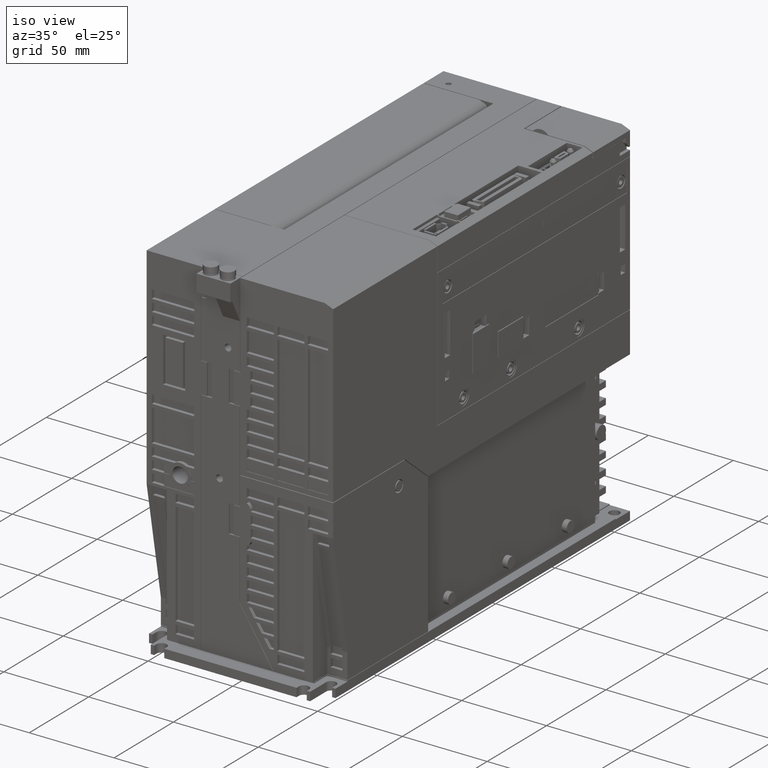
[diagram: clean part render]
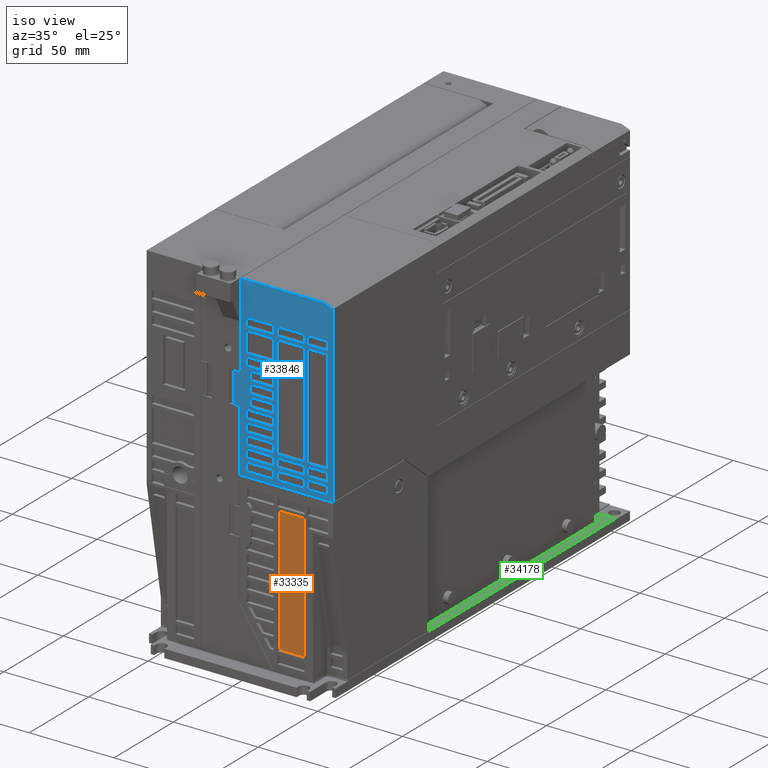
[diagram: same view with three faces highlighted in distinct colors, each labeled with its STEP entity id]
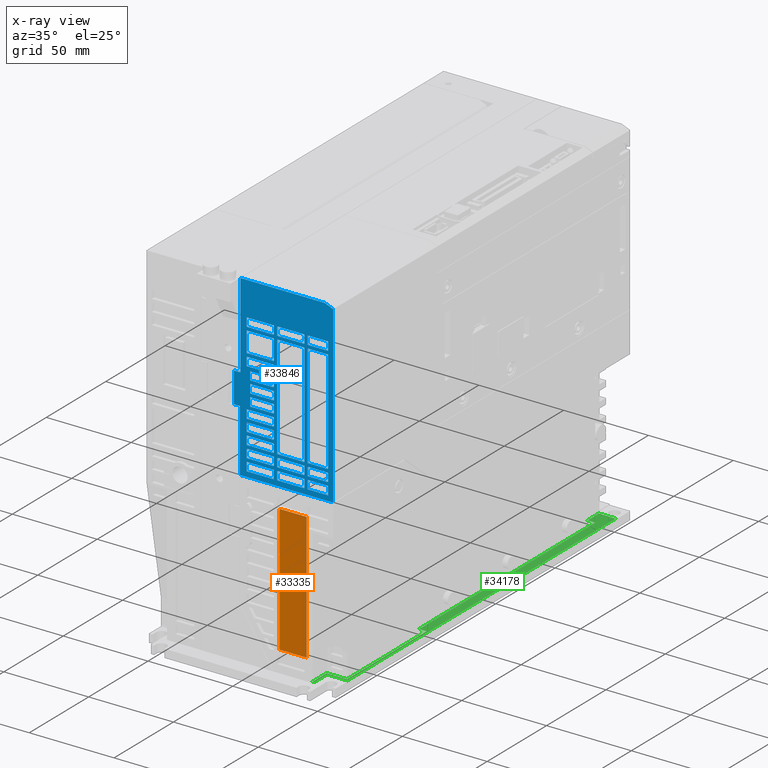
[diagram: x-ray of the same camera — body ghosted, the three highlighted faces saturated]
A machine part, iso view with three faces highlighted in distinct colors.
The next image is the same camera in x-ray (body ghosted, the three faces saturated) — at least one of them is partly hidden behind the body in this view.
Their STEP definitions:

[orange] entity #33335 — the highlighted planar face has unit normal (-0, 1, 0).
#2659=ORIENTED_EDGE('',*,*,#11726,.T.);
#2660=ORIENTED_EDGE('',*,*,#11727,.T.);
#2661=ORIENTED_EDGE('',*,*,#11728,.T.);
#2662=ORIENTED_EDGE('',*,*,#11729,.T.);
#11726=EDGE_CURVE('',#16266,#16267,#19481,.T.);
#11727=EDGE_CURVE('',#16267,#16268,#19482,.T.);
#11728=EDGE_CURVE('',#16268,#16269,#19483,.T.);
#11729=EDGE_CURVE('',#16269,#16266,#19484,.T.);
#16266=VERTEX_POINT('',#49639);
#16267=VERTEX_POINT('',#49640);
#16268=VERTEX_POINT('',#49642);
#16269=VERTEX_POINT('',#49644);
#19481=LINE('',#49638,#23716);
#19482=LINE('',#49641,#23717);
#19483=LINE('',#49643,#23718);
#19484=LINE('',#49645,#23719);
#23716=VECTOR('',#39767,1000.);
#23717=VECTOR('',#39768,1000.);
#23718=VECTOR('',#39769,1000.);
#23719=VECTOR('',#39770,1000.);
#27032=EDGE_LOOP('',(#2659,#2660,#2661,#2662));
#29375=FACE_BOUND('',#27032,.T.);
#31607=PLANE('',#35457);
#33335=ADVANCED_FACE('',(#29375),#31607,.F.);
#35457=AXIS2_PLACEMENT_3D('',#49637,#39765,#39766);
#39765=DIRECTION('',(-2.6727647100922E-45,1.,1.92592994438724E-30));
#39766=DIRECTION('',(1.,0.,1.38777878078145E-15));
#39767=DIRECTION('',(0.,-1.92592994438724E-30,1.));
#39768=DIRECTION('',(-1.,-2.6727647100922E-45,-6.52530446799853E-46));
#39769=DIRECTION('',(-6.93889390390722E-16,1.92592994438724E-30,-1.));
#39770=DIRECTION('',(1.,2.6727647100922E-45,0.));
#49637=CARTESIAN_POINT('',(-70.,-242.,200.));
#49638=CARTESIAN_POINT('',(-12.,-242.,200.));
#49639=CARTESIAN_POINT('',(-12.0000000000064,-242.000000000007,17.0000000000067));
#49640=CARTESIAN_POINT('',(-12.0000000000067,-242.000000000007,92.0000000000067));
#49641=CARTESIAN_POINT('',(-70.,-242.,92.));
#49642=CARTESIAN_POINT('',(-28.0000000000067,-242.000000000007,92.0000000000067));
#49643=CARTESIAN_POINT('',(-28.,-242.,200.));
#49644=CARTESIAN_POINT('',(-28.0000000000064,-242.000000000007,17.0000000000067));
#49645=CARTESIAN_POINT('',(-70.,-242.,17.));

[blue] entity #33846 — the highlighted planar face has unit normal (0, 1, 0).
#5408=ORIENTED_EDGE('',*,*,#13620,.F.);
#5409=ORIENTED_EDGE('',*,*,#11719,.F.);
#5410=ORIENTED_EDGE('',*,*,#11199,.F.);
#5411=ORIENTED_EDGE('',*,*,#13621,.F.);
#5412=ORIENTED_EDGE('',*,*,#13622,.F.);
#5413=ORIENTED_EDGE('',*,*,#13623,.F.);
#5414=ORIENTED_EDGE('',*,*,#13624,.F.);
#5415=ORIENTED_EDGE('',*,*,#13625,.F.);
#5416=ORIENTED_EDGE('',*,*,#13626,.F.);
#5417=ORIENTED_EDGE('',*,*,#13627,.F.);
#5418=ORIENTED_EDGE('',*,*,#13550,.F.);
#5419=ORIENTED_EDGE('',*,*,#13628,.F.);
#5420=ORIENTED_EDGE('',*,*,#13629,.F.);
#5421=ORIENTED_EDGE('',*,*,#13630,.F.);
#5422=ORIENTED_EDGE('',*,*,#13631,.F.);
#5423=ORIENTED_EDGE('',*,*,#11652,.F.);
#5424=ORIENTED_EDGE('',*,*,#11693,.F.);
#5425=ORIENTED_EDGE('',*,*,#13632,.F.);
#5426=ORIENTED_EDGE('',*,*,#13633,.F.);
#5427=ORIENTED_EDGE('',*,*,#13634,.F.);
#5428=ORIENTED_EDGE('',*,*,#13635,.F.);
#5429=ORIENTED_EDGE('',*,*,#13636,.F.);
#5430=ORIENTED_EDGE('',*,*,#13616,.F.);
#5431=ORIENTED_EDGE('',*,*,#13637,.F.);
#5432=ORIENTED_EDGE('',*,*,#11658,.F.);
#5433=ORIENTED_EDGE('',*,*,#13638,.F.);
#5434=ORIENTED_EDGE('',*,*,#13639,.F.);
#5435=ORIENTED_EDGE('',*,*,#12588,.F.);
#5436=ORIENTED_EDGE('',*,*,#13640,.F.);
#5437=ORIENTED_EDGE('',*,*,#12443,.F.);
#5438=ORIENTED_EDGE('',*,*,#13641,.F.);
#5439=ORIENTED_EDGE('',*,*,#13642,.F.);
#5440=ORIENTED_EDGE('',*,*,#13643,.F.);
#5441=ORIENTED_EDGE('',*,*,#12726,.F.);
#5442=ORIENTED_EDGE('',*,*,#13644,.F.);
#5443=ORIENTED_EDGE('',*,*,#13213,.F.);
#5444=ORIENTED_EDGE('',*,*,#13645,.F.);
#5445=ORIENTED_EDGE('',*,*,#13646,.F.);
#5446=ORIENTED_EDGE('',*,*,#10768,.F.);
#5447=ORIENTED_EDGE('',*,*,#13647,.F.);
#5448=ORIENTED_EDGE('',*,*,#13648,.F.);
#5449=ORIENTED_EDGE('',*,*,#13649,.F.);
#5450=ORIENTED_EDGE('',*,*,#13650,.F.);
#5451=ORIENTED_EDGE('',*,*,#13249,.F.);
#5452=ORIENTED_EDGE('',*,*,#11689,.F.);
#5453=ORIENTED_EDGE('',*,*,#12494,.F.);
#5454=ORIENTED_EDGE('',*,*,#11028,.F.);
#5455=ORIENTED_EDGE('',*,*,#13493,.F.);
#5456=ORIENTED_EDGE('',*,*,#13651,.F.);
#5457=ORIENTED_EDGE('',*,*,#13144,.F.);
#5458=ORIENTED_EDGE('',*,*,#13652,.F.);
#5459=ORIENTED_EDGE('',*,*,#11998,.F.);
#5460=ORIENTED_EDGE('',*,*,#13653,.F.);
#5461=ORIENTED_EDGE('',*,*,#13654,.F.);
#5462=ORIENTED_EDGE('',*,*,#12427,.F.);
#5463=ORIENTED_EDGE('',*,*,#13655,.F.);
#5464=ORIENTED_EDGE('',*,*,#13656,.F.);
#5465=ORIENTED_EDGE('',*,*,#13657,.F.);
#5466=ORIENTED_EDGE('',*,*,#13658,.F.);
#5467=ORIENTED_EDGE('',*,*,#13509,.F.);
#5468=ORIENTED_EDGE('',*,*,#13574,.F.);
#5469=ORIENTED_EDGE('',*,*,#13272,.F.);
#5470=ORIENTED_EDGE('',*,*,#13659,.F.);
#5471=ORIENTED_EDGE('',*,*,#13660,.F.);
#5472=ORIENTED_EDGE('',*,*,#13661,.F.);
#5473=ORIENTED_EDGE('',*,*,#11331,.F.);
#5474=ORIENTED_EDGE('',*,*,#13396,.F.);
#5475=ORIENTED_EDGE('',*,*,#13662,.F.);
#5476=ORIENTED_EDGE('',*,*,#13663,.F.);
#5477=ORIENTED_EDGE('',*,*,#11164,.F.);
#5478=ORIENTED_EDGE('',*,*,#11997,.F.);
#5479=ORIENTED_EDGE('',*,*,#11057,.F.);
#5480=ORIENTED_EDGE('',*,*,#10960,.F.);
#5481=ORIENTED_EDGE('',*,*,#12339,.F.);
#5482=ORIENTED_EDGE('',*,*,#13664,.F.);
#5483=ORIENTED_EDGE('',*,*,#13665,.F.);
#5484=ORIENTED_EDGE('',*,*,#13666,.F.);
#5485=ORIENTED_EDGE('',*,*,#12994,.T.);
#5486=ORIENTED_EDGE('',*,*,#13667,.F.);
#5487=ORIENTED_EDGE('',*,*,#13668,.F.);
#5488=ORIENTED_EDGE('',*,*,#13669,.F.);
#5489=ORIENTED_EDGE('',*,*,#13670,.F.);
#5490=ORIENTED_EDGE('',*,*,#11333,.F.);
#5491=ORIENTED_EDGE('',*,*,#12362,.F.);
#5492=ORIENTED_EDGE('',*,*,#12678,.T.);
#10768=EDGE_CURVE('',#15392,#15393,#18643,.T.);
#10960=EDGE_CURVE('',#15575,#15576,#18815,.T.);
#11028=EDGE_CURVE('',#15640,#15641,#18876,.T.);
#11057=EDGE_CURVE('',#15668,#15669,#18901,.T.);
#11164=EDGE_CURVE('',#15767,#15768,#19004,.T.);
#11199=EDGE_CURVE('',#15799,#15800,#19031,.T.);
#11331=EDGE_CURVE('',#15916,#15917,#19142,.T.);
#11333=EDGE_CURVE('',#15918,#15919,#19144,.T.);
#11652=EDGE_CURVE('',#16201,#16202,#19412,.T.);
#11658=EDGE_CURVE('',#16205,#16206,#19418,.T.);
#11689=EDGE_CURVE('',#16234,#16235,#19444,.T.);
#11693=EDGE_CURVE('',#16238,#16239,#19448,.T.);
#11719=EDGE_CURVE('',#15800,#16262,#19474,.T.);
#11997=EDGE_CURVE('',#15669,#15767,#19698,.T.);
#11998=EDGE_CURVE('',#16495,#16496,#19699,.T.);
#12339=EDGE_CURVE('',#16766,#15575,#20014,.T.);
#12362=EDGE_CURVE('',#16782,#15918,#20033,.T.);
#12427=EDGE_CURVE('',#16830,#16831,#20095,.T.);
#12443=EDGE_CURVE('',#16841,#16842,#20111,.T.);
#12494=EDGE_CURVE('',#15641,#16234,#20150,.T.);
#12588=EDGE_CURVE('',#16206,#16943,#20235,.T.);
#12678=EDGE_CURVE('',#16782,#17008,#20318,.T.);
#12726=EDGE_CURVE('',#17036,#17037,#20362,.T.);
#12994=EDGE_CURVE('',#17212,#17213,#20606,.T.);
#13144=EDGE_CURVE('',#17311,#17312,#20746,.T.);
#13213=EDGE_CURVE('',#17354,#17355,#20804,.T.);
#13249=EDGE_CURVE('',#17380,#17381,#20837,.T.);
#13272=EDGE_CURVE('',#17396,#17397,#20860,.T.);
#13396=EDGE_CURVE('',#17470,#15916,#20977,.T.);
#13493=EDGE_CURVE('',#16235,#15640,#21069,.T.);
#13509=EDGE_CURVE('',#17535,#17536,#21084,.T.);
#13550=EDGE_CURVE('',#17561,#17562,#21123,.T.);
#13574=EDGE_CURVE('',#17397,#17577,#21146,.T.);
#13616=EDGE_CURVE('',#17594,#17595,#21186,.T.);
#13620=EDGE_CURVE('',#16262,#17598,#21190,.T.);
#13621=EDGE_CURVE('',#17598,#15799,#21191,.T.);
#13622=EDGE_CURVE('',#17599,#17600,#21192,.T.);
#13623=EDGE_CURVE('',#17601,#17599,#21193,.T.);
#13624=EDGE_CURVE('',#17602,#17601,#21194,.T.);
#13625=EDGE_CURVE('',#17600,#17602,#21195,.T.);
#13626=EDGE_CURVE('',#17603,#17604,#21196,.T.);
#13627=EDGE_CURVE('',#17562,#17603,#21197,.T.);
#13628=EDGE_CURVE('',#17604,#17561,#21198,.T.);
#13629=EDGE_CURVE('',#17605,#16201,#21199,.T.);
#13630=EDGE_CURVE('',#17606,#17605,#21200,.T.);
#13631=EDGE_CURVE('',#16202,#17606,#21201,.T.);
#13632=EDGE_CURVE('',#17607,#16238,#21202,.T.);
#13633=EDGE_CURVE('',#17608,#17607,#21203,.T.);
#13634=EDGE_CURVE('',#16239,#17608,#21204,.T.);
#13635=EDGE_CURVE('',#17609,#17610,#21205,.T.);
#13636=EDGE_CURVE('',#17595,#17609,#21206,.T.);
#13637=EDGE_CURVE('',#17610,#17594,#21207,.T.);
#13638=EDGE_CURVE('',#17611,#16205,#21208,.T.);
#13639=EDGE_CURVE('',#16943,#17611,#21209,.T.);
#13640=EDGE_CURVE('',#16842,#17612,#21210,.T.);
#13641=EDGE_CURVE('',#17613,#16841,#21211,.T.);
#13642=EDGE_CURVE('',#17612,#17613,#21212,.T.);
#13643=EDGE_CURVE('',#17037,#17354,#21213,.T.);
#13644=EDGE_CURVE('',#17355,#17036,#21214,.T.);
#13645=EDGE_CURVE('',#17614,#17615,#21215,.T.);
#13646=EDGE_CURVE('',#15393,#17614,#21216,.T.);
#13647=EDGE_CURVE('',#17615,#15392,#21217,.T.);
#13648=EDGE_CURVE('',#17616,#17380,#21218,.T.);
#13649=EDGE_CURVE('',#17617,#17616,#21219,.T.);
#13650=EDGE_CURVE('',#17381,#17617,#21220,.T.);
#13651=EDGE_CURVE('',#17312,#16495,#21221,.T.);
#13652=EDGE_CURVE('',#16496,#17311,#21222,.T.);
#13653=EDGE_CURVE('',#17618,#17619,#21223,.T.);
#13654=EDGE_CURVE('',#16831,#17618,#21224,.T.);
#13655=EDGE_CURVE('',#17619,#16830,#21225,.T.);
#13656=EDGE_CURVE('',#17620,#17535,#21226,.T.);
#13657=EDGE_CURVE('',#17621,#17620,#21227,.T.);
#13658=EDGE_CURVE('',#17536,#17621,#21228,.T.);
#13659=EDGE_CURVE('',#17622,#17396,#21229,.T.);
#13660=EDGE_CURVE('',#17577,#17622,#21230,.T.);
#13661=EDGE_CURVE('',#15917,#17623,#21231,.T.);
#13662=EDGE_CURVE('',#17623,#17470,#21232,.T.);
#13663=EDGE_CURVE('',#15768,#15668,#21233,.T.);
#13664=EDGE_CURVE('',#17624,#16766,#21234,.T.);
#13665=EDGE_CURVE('',#15576,#17624,#21235,.T.);
#13666=EDGE_CURVE('',#17212,#17008,#21236,.T.);
#13667=EDGE_CURVE('',#17625,#17213,#21237,.T.);
#13668=EDGE_CURVE('',#17626,#17625,#21238,.T.);
#13669=EDGE_CURVE('',#17627,#17626,#21239,.T.);
#13670=EDGE_CURVE('',#15919,#17627,#21240,.T.);
#15392=VERTEX_POINT('',#47598);
#15393=VERTEX_POINT('',#47599);
#15575=VERTEX_POINT('',#48010);
#15576=VERTEX_POINT('',#48012);
#15640=VERTEX_POINT('',#48162);
#15641=VERTEX_POINT('',#48163);
#15668=VERTEX_POINT('',#48225);
#15669=VERTEX_POINT('',#48227);
#15767=VERTEX_POINT('',#48453);
#15768=VERTEX_POINT('',#48455);
#15799=VERTEX_POINT('',#48531);
#15800=VERTEX_POINT('',#48532);
#15916=VERTEX_POINT('',#48806);
#15917=VERTEX_POINT('',#48808);
#15918=VERTEX_POINT('',#48812);
#15919=VERTEX_POINT('',#48813);
#16201=VERTEX_POINT('',#49478);
#16202=VERTEX_POINT('',#49479);
#16205=VERTEX_POINT('',#49490);
#16206=VERTEX_POINT('',#49491);
#16234=VERTEX_POINT('',#49559);
#16235=VERTEX_POINT('',#49560);
#16238=VERTEX_POINT('',#49568);
#16239=VERTEX_POINT('',#49569);
#16262=VERTEX_POINT('',#49625);
#16495=VERTEX_POINT('',#50169);
#16496=VERTEX_POINT('',#50170);
#16766=VERTEX_POINT('',#50876);
#16782=VERTEX_POINT('',#50924);
#16830=VERTEX_POINT('',#51052);
#16831=VERTEX_POINT('',#51053);
#16841=VERTEX_POINT('',#51084);
#16842=VERTEX_POINT('',#51085);
#16943=VERTEX_POINT('',#51369);
#17008=VERTEX_POINT('',#51550);
#17036=VERTEX_POINT('',#51646);
#17037=VERTEX_POINT('',#51647);
#17212=VERTEX_POINT('',#52162);
#17213=VERTEX_POINT('',#52163);
#17311=VERTEX_POINT('',#52455);
#17312=VERTEX_POINT('',#52456);
#17354=VERTEX_POINT('',#52587);
#17355=VERTEX_POINT('',#52588);
#17380=VERTEX_POINT('',#52661);
#17381=VERTEX_POINT('',#52662);
#17396=VERTEX_POINT('',#52706);
#17397=VERTEX_POINT('',#52707);
#17470=VERTEX_POINT('',#52931);
#17535=VERTEX_POINT('',#53155);
#17536=VERTEX_POINT('',#53156);
#17561=VERTEX_POINT('',#53239);
#17562=VERTEX_POINT('',#53240);
#17577=VERTEX_POINT('',#53287);
#17594=VERTEX_POINT('',#53367);
#17595=VERTEX_POINT('',#53368);
#17598=VERTEX_POINT('',#53376);
#17599=VERTEX_POINT('',#53379);
#17600=VERTEX_POINT('',#53380);
#17601=VERTEX_POINT('',#53382);
#17602=VERTEX_POINT('',#53384);
#17603=VERTEX_POINT('',#53387);
#17604=VERTEX_POINT('',#53388);
#17605=VERTEX_POINT('',#53392);
#17606=VERTEX_POINT('',#53394);
#17607=VERTEX_POINT('',#53397);
#17608=VERTEX_POINT('',#53399);
#17609=VERTEX_POINT('',#53402);
#17610=VERTEX_POINT('',#53403);
#17611=VERTEX_POINT('',#53407);
#17612=VERTEX_POINT('',#53410);
#17613=VERTEX_POINT('',#53412);
#17614=VERTEX_POINT('',#53417);
#17615=VERTEX_POINT('',#53418);
#17616=VERTEX_POINT('',#53422);
#17617=VERTEX_POINT('',#53424);
#17618=VERTEX_POINT('',#53429);
#17619=VERTEX_POINT('',#53430);
#17620=VERTEX_POINT('',#53434);
#17621=VERTEX_POINT('',#53436);
#17622=VERTEX_POINT('',#53439);
#17623=VERTEX_POINT('',#53442);
#17624=VERTEX_POINT('',#53446);
#17625=VERTEX_POINT('',#53450);
#17626=VERTEX_POINT('',#53452);
#17627=VERTEX_POINT('',#53454);
#18643=LINE('',#47597,#22878);
#18815=LINE('',#48011,#23050);
#18876=LINE('',#48161,#23111);
#18901=LINE('',#48226,#23136);
#19004=LINE('',#48454,#23239);
#19031=LINE('',#48530,#23266);
#19142=LINE('',#48807,#23377);
#19144=LINE('',#48811,#23379);
#19412=LINE('',#49477,#23647);
#19418=LINE('',#49489,#23653);
#19444=LINE('',#49558,#23679);
#19448=LINE('',#49567,#23683);
#19474=LINE('',#49624,#23709);
#19698=LINE('',#50166,#23933);
#19699=LINE('',#50168,#23934);
#20014=LINE('',#50877,#24249);
#20033=LINE('',#50925,#24268);
#20095=LINE('',#51051,#24330);
#20111=LINE('',#51083,#24346);
#20150=LINE('',#51186,#24385);
#20235=LINE('',#51368,#24470);
#20318=LINE('',#51549,#24553);
#20362=LINE('',#51645,#24597);
#20606=LINE('',#52161,#24841);
#20746=LINE('',#52454,#24981);
#20804=LINE('',#52586,#25039);
#20837=LINE('',#52660,#25072);
#20860=LINE('',#52705,#25095);
#20977=LINE('',#52932,#25212);
#21069=LINE('',#53123,#25304);
#21084=LINE('',#53154,#25319);
#21123=LINE('',#53238,#25358);
#21146=LINE('',#53286,#25381);
#21186=LINE('',#53366,#25421);
#21190=LINE('',#53375,#25425);
#21191=LINE('',#53377,#25426);
#21192=LINE('',#53378,#25427);
#21193=LINE('',#53381,#25428);
#21194=LINE('',#53383,#25429);
#21195=LINE('',#53385,#25430);
#21196=LINE('',#53386,#25431);
#21197=LINE('',#53389,#25432);
#21198=LINE('',#53390,#25433);
#21199=LINE('',#53391,#25434);
#21200=LINE('',#53393,#25435);
#21201=LINE('',#53395,#25436);
#21202=LINE('',#53396,#25437);
#21203=LINE('',#53398,#25438);
#21204=LINE('',#53400,#25439);
#21205=LINE('',#53401,#25440);
#21206=LINE('',#53404,#25441);
#21207=LINE('',#53405,#25442);
#21208=LINE('',#53406,#25443);
#21209=LINE('',#53408,#25444);
#21210=LINE('',#53409,#25445);
#21211=LINE('',#53411,#25446);
#21212=LINE('',#53413,#25447);
#21213=LINE('',#53414,#25448);
#21214=LINE('',#53415,#25449);
#21215=LINE('',#53416,#25450);
#21216=LINE('',#53419,#25451);
#21217=LINE('',#53420,#25452);
#21218=LINE('',#53421,#25453);
#21219=LINE('',#53423,#25454);
#21220=LINE('',#53425,#25455);
#21221=LINE('',#53426,#25456);
#21222=LINE('',#53427,#25457);
#21223=LINE('',#53428,#25458);
#21224=LINE('',#53431,#25459);
#21225=LINE('',#53432,#25460);
#21226=LINE('',#53433,#25461);
#21227=LINE('',#53435,#25462);
#21228=LINE('',#53437,#25463);
#21229=LINE('',#53438,#25464);
#21230=LINE('',#53440,#25465);
#21231=LINE('',#53441,#25466);
#21232=LINE('',#53443,#25467);
#21233=LINE('',#53444,#25468);
#21234=LINE('',#53445,#25469);
#21235=LINE('',#53447,#25470);
#21236=LINE('',#53448,#25471);
#21237=LINE('',#53449,#25472);
#21238=LINE('',#53451,#25473);
#21239=LINE('',#53453,#25474);
#21240=LINE('',#53455,#25475);
#22878=VECTOR('',#38271,1000.);
#23050=VECTOR('',#38559,1000.);
#23111=VECTOR('',#38670,1000.);
#23136=VECTOR('',#38717,1000.);
#23239=VECTOR('',#38872,1000.);
#23266=VECTOR('',#38935,1000.);
#23377=VECTOR('',#39142,1000.);
#23379=VECTOR('',#39146,1000.);
#23647=VECTOR('',#39644,1000.);
#23653=VECTOR('',#39654,1000.);
#23679=VECTOR('',#39708,1000.);
#23683=VECTOR('',#39714,1000.);
#23709=VECTOR('',#39754,1000.);
#23933=VECTOR('',#40148,1000.);
#23934=VECTOR('',#40151,1000.);
#24249=VECTOR('',#40710,1000.);
#24268=VECTOR('',#40755,1000.);
#24330=VECTOR('',#40851,1000.);
#24346=VECTOR('',#40877,1000.);
#24385=VECTOR('',#40970,1000.);
#24470=VECTOR('',#41119,1000.);
#24553=VECTOR('',#41268,1000.);
#24597=VECTOR('',#41360,1000.);
#24841=VECTOR('',#41796,1000.);
#24981=VECTOR('',#42044,1000.);
#25039=VECTOR('',#42164,1000.);
#25072=VECTOR('',#42227,1000.);
#25095=VECTOR('',#42262,1000.);
#25212=VECTOR('',#42449,1000.);
#25304=VECTOR('',#42625,1000.);
#25319=VECTOR('',#42658,1000.);
#25358=VECTOR('',#42735,1000.);
#25381=VECTOR('',#42776,1000.);
#25421=VECTOR('',#42862,1000.);
#25425=VECTOR('',#42868,1000.);
#25426=VECTOR('',#42869,1000.);
#25427=VECTOR('',#42870,1000.);
#25428=VECTOR('',#42871,1000.);
#25429=VECTOR('',#42872,1000.);
#25430=VECTOR('',#42873,1000.);
#25431=VECTOR('',#42874,1000.);
#25432=VECTOR('',#42875,1000.);
#25433=VECTOR('',#42876,1000.);
#25434=VECTOR('',#42877,1000.);
#25435=VECTOR('',#42878,1000.);
#25436=VECTOR('',#42879,1000.);
#25437=VECTOR('',#42880,1000.);
#25438=VECTOR('',#42881,1000.);
#25439=VECTOR('',#42882,1000.);
#25440=VECTOR('',#42883,1000.);
#25441=VECTOR('',#42884,1000.);
#25442=VECTOR('',#42885,1000.);
#25443=VECTOR('',#42886,1000.);
#25444=VECTOR('',#42887,1000.);
#25445=VECTOR('',#42888,1000.);
#25446=VECTOR('',#42889,1000.);
#25447=VECTOR('',#42890,1000.);
#25448=VECTOR('',#42891,1000.);
#25449=VECTOR('',#42892,1000.);
#25450=VECTOR('',#42893,1000.);
#25451=VECTOR('',#42894,1000.);
#25452=VECTOR('',#42895,1000.);
#25453=VECTOR('',#42896,1000.);
#25454=VECTOR('',#42897,1000.);
#25455=VECTOR('',#42898,1000.);
#25456=VECTOR('',#42899,1000.);
#25457=VECTOR('',#42900,1000.);
#25458=VECTOR('',#42901,1000.);
#25459=VECTOR('',#42902,1000.);
#25460=VECTOR('',#42903,1000.);
#25461=VECTOR('',#42904,1000.);
#25462=VECTOR('',#42905,1000.);
#25463=VECTOR('',#42906,1000.);
#25464=VECTOR('',#42907,1000.);
#25465=VECTOR('',#42908,1000.);
#25466=VECTOR('',#42909,1000.);
#25467=VECTOR('',#42910,1000.);
#25468=VECTOR('',#42911,1000.);
#25469=VECTOR('',#42912,1000.);
#25470=VECTOR('',#42913,1000.);
#25471=VECTOR('',#42914,1000.);
#25472=VECTOR('',#42915,1000.);
#25473=VECTOR('',#42916,1000.);
#25474=VECTOR('',#42917,1000.);
#25475=VECTOR('',#42918,1000.);
#27696=EDGE_LOOP('',(#5408,#5409,#5410,#5411));
#27697=EDGE_LOOP('',(#5412,#5413,#5414,#5415));
#27698=EDGE_LOOP('',(#5416,#5417,#5418,#5419));
#27699=EDGE_LOOP('',(#5420,#5421,#5422,#5423));
#27700=EDGE_LOOP('',(#5424,#5425,#5426,#5427));
#27701=EDGE_LOOP('',(#5428,#5429,#5430,#5431));
#27702=EDGE_LOOP('',(#5432,#5433,#5434,#5435));
#27703=EDGE_LOOP('',(#5436,#5437,#5438,#5439));
#27704=EDGE_LOOP('',(#5440,#5441,#5442,#5443));
#27705=EDGE_LOOP('',(#5444,#5445,#5446,#5447));
#27706=EDGE_LOOP('',(#5448,#5449,#5450,#5451));
#27707=EDGE_LOOP('',(#5452,#5453,#5454,#5455));
#27708=EDGE_LOOP('',(#5456,#5457,#5458,#5459));
#27709=EDGE_LOOP('',(#5460,#5461,#5462,#5463));
#27710=EDGE_LOOP('',(#5464,#5465,#5466,#5467));
#27711=EDGE_LOOP('',(#5468,#5469,#5470,#5471));
#27712=EDGE_LOOP('',(#5472,#5473,#5474,#5475));
#27713=EDGE_LOOP('',(#5476,#5477,#5478,#5479));
#27714=EDGE_LOOP('',(#5480,#5481,#5482,#5483));
#27715=EDGE_LOOP('',(#5484,#5485,#5486,#5487,#5488,#5489,#5490,#5491,#5492));
#30039=FACE_BOUND('',#27696,.T.);
#30040=FACE_BOUND('',#27697,.T.);
#30041=FACE_BOUND('',#27698,.T.);
#30042=FACE_BOUND('',#27699,.T.);
#30043=FACE_BOUND('',#27700,.T.);
#30044=FACE_BOUND('',#27701,.T.);
#30045=FACE_BOUND('',#27702,.T.);
#30046=FACE_BOUND('',#27703,.T.);
#30047=FACE_BOUND('',#27704,.T.);
#30048=FACE_BOUND('',#27705,.T.);
#30049=FACE_BOUND('',#27706,.T.);
#30050=FACE_BOUND('',#27707,.T.);
#30051=FACE_BOUND('',#27708,.T.);
#30052=FACE_BOUND('',#27709,.T.);
#30053=FACE_BOUND('',#27710,.T.);
#30054=FACE_BOUND('',#27711,.T.);
#30055=FACE_BOUND('',#27712,.T.);
#30056=FACE_BOUND('',#27713,.T.);
#30057=FACE_BOUND('',#27714,.T.);
#30058=FACE_BOUND('',#27715,.T.);
#32058=PLANE('',#36153);
#33846=ADVANCED_FACE('',(#30039,#30040,#30041,#30042,#30043,#30044,#30045,
#30046,#30047,#30048,#30049,#30050,#30051,#30052,#30053,#30054,#30055,#30056,
#30057,#30058),#32058,.F.);
#36153=AXIS2_PLACEMENT_3D('',#53374,#42866,#42867);
#38271=DIRECTION('',(1.,0.,0.));
#38559=DIRECTION('',(-1.,0.,0.));
#38670=DIRECTION('',(1.,0.,0.));
#38717=DIRECTION('',(-6.93889390390722E-16,0.,-1.));
#38872=DIRECTION('',(0.,0.,1.));
#38935=DIRECTION('',(0.,0.,-1.));
#39142=DIRECTION('',(0.,0.,1.));
#39146=DIRECTION('',(-1.,0.,0.));
#39644=DIRECTION('',(0.,0.,-1.));
#39654=DIRECTION('',(-1.,0.,0.));
#39708=DIRECTION('',(-1.,0.,0.));
#39714=DIRECTION('',(0.,0.,1.));
#39754=DIRECTION('',(1.,0.,0.));
#40148=DIRECTION('',(1.,0.,0.));
#40151=DIRECTION('',(0.,0.,-1.));
#40710=DIRECTION('',(0.,0.,1.));
#40755=DIRECTION('',(0.,0.,1.));
#40851=DIRECTION('',(0.,0.,-1.));
#40877=DIRECTION('',(0.,0.,1.));
#40970=DIRECTION('',(0.,0.,1.));
#41119=DIRECTION('',(0.,0.,-1.));
#41268=DIRECTION('',(1.,1.02220446049249E-14,0.));
#41360=DIRECTION('',(0.,0.,1.));
#41796=DIRECTION('',(-0.928476690885259,0.,0.371390676354105));
#42044=DIRECTION('',(0.,0.,1.));
#42164=DIRECTION('',(0.,0.,-1.));
#42227=DIRECTION('',(0.,0.,-1.));
#42262=DIRECTION('',(0.,0.,1.));
#42449=DIRECTION('',(1.,0.,0.));
#42625=DIRECTION('',(0.,0.,-1.));
#42658=DIRECTION('',(0.,0.,-1.));
#42735=DIRECTION('',(1.,0.,0.));
#42776=DIRECTION('',(-1.,0.,0.));
#42862=DIRECTION('',(1.,0.,0.));
#42866=DIRECTION('',(0.,1.,0.));
#42867=DIRECTION('',(1.,0.,0.));
#42868=DIRECTION('',(0.,0.,1.));
#42869=DIRECTION('',(-1.,0.,0.));
#42870=DIRECTION('',(-1.,0.,0.));
#42871=DIRECTION('',(0.,0.,1.));
#42872=DIRECTION('',(1.,0.,0.));
#42873=DIRECTION('',(0.,0.,-1.));
#42874=DIRECTION('',(-1.,0.,0.));
#42875=DIRECTION('',(0.,0.,1.));
#42876=DIRECTION('',(-1.06938893903906E-14,0.,-1.));
#42877=DIRECTION('',(-1.,0.,0.));
#42878=DIRECTION('',(0.,0.,1.));
#42879=DIRECTION('',(1.,0.,0.));
#42880=DIRECTION('',(1.,0.,0.));
#42881=DIRECTION('',(-6.93889390390722E-16,0.,-1.));
#42882=DIRECTION('',(-1.,0.,0.));
#42883=DIRECTION('',(-1.,0.,0.));
#42884=DIRECTION('',(0.,0.,1.));
#42885=DIRECTION('',(0.,0.,-1.));
#42886=DIRECTION('',(0.,0.,1.));
#42887=DIRECTION('',(1.,0.,0.));
#42888=DIRECTION('',(-1.,0.,0.));
#42889=DIRECTION('',(1.,0.,0.));
#42890=DIRECTION('',(0.,0.,-1.));
#42891=DIRECTION('',(-1.,0.,0.));
#42892=DIRECTION('',(1.,0.,0.));
#42893=DIRECTION('',(-1.,0.,0.));
#42894=DIRECTION('',(0.,0.,1.));
#42895=DIRECTION('',(0.,0.,-1.));
#42896=DIRECTION('',(-1.,0.,0.));
#42897=DIRECTION('',(0.,0.,1.));
#42898=DIRECTION('',(1.,0.,0.));
#42899=DIRECTION('',(-1.,0.,0.));
#42900=DIRECTION('',(1.,0.,0.));
#42901=DIRECTION('',(0.,0.,1.));
#42902=DIRECTION('',(1.,0.,0.));
#42903=DIRECTION('',(-1.,0.,0.));
#42904=DIRECTION('',(-1.,0.,0.));
#42905=DIRECTION('',(0.,0.,1.));
#42906=DIRECTION('',(1.,0.,0.));
#42907=DIRECTION('',(1.,0.,0.));
#42908=DIRECTION('',(-6.93889390390722E-16,0.,-1.));
#42909=DIRECTION('',(-1.,0.,0.));
#42910=DIRECTION('',(0.,0.,-1.));
#42911=DIRECTION('',(-1.,0.,0.));
#42912=DIRECTION('',(1.,0.,0.));
#42913=DIRECTION('',(0.,0.,-1.));
#42914=DIRECTION('',(0.,0.,-1.));
#42915=DIRECTION('',(1.,0.,0.));
#42916=DIRECTION('',(1.71309569952327E-15,0.,1.));
#42917=DIRECTION('',(1.,0.,0.));
#42918=DIRECTION('',(0.,0.,1.));
#47597=CARTESIAN_POINT('',(-30.00000000001,-244.00000000001,143.00000000001));
#47598=CARTESIAN_POINT('',(-44.,-244.,143.));
#47599=CARTESIAN_POINT('',(-30.0000000000067,-244.000000000007,143.000000000007));
#48010=CARTESIAN_POINT('',(-30.0000000000067,-244.000000000007,113.000000000007));
#48011=CARTESIAN_POINT('',(2.00000000000007,-244.,113.));
#48012=CARTESIAN_POINT('',(-46.0000000000067,-244.000000000007,113.000000000007));
#48161=CARTESIAN_POINT('',(-77.,-244.,129.));
#48162=CARTESIAN_POINT('',(-46.0000000000066,-244.000000000007,129.000000000007));
#48163=CARTESIAN_POINT('',(-30.0000000000067,-244.000000000007,129.000000000007));
#48225=CARTESIAN_POINT('',(-28.0000000000067,-244.000000000007,113.000000000007));
#48226=CARTESIAN_POINT('',(-28.,-244.,190.));
#48227=CARTESIAN_POINT('',(-28.0000000000067,-244.000000000007,108.000000000007));
#48453=CARTESIAN_POINT('',(-12.0000000000067,-244.000000000007,108.000000000007));
#48454=CARTESIAN_POINT('',(-12.,-244.,15.));
#48455=CARTESIAN_POINT('',(-12.0000000000067,-244.000000000007,113.000000000007));
#48530=CARTESIAN_POINT('',(-10.,-244.,92.));
#48531=CARTESIAN_POINT('',(-10.0000000000067,-244.000000000007,190.000000000007));
#48532=CARTESIAN_POINT('',(-10.0000000000067,-244.000000000007,185.000000000007));
#48806=CARTESIAN_POINT('',(2.00000000000672,-244.000000000007,108.000000000007));
#48807=CARTESIAN_POINT('',(2.00000000000004,-244.,141.2));
#48808=CARTESIAN_POINT('',(2.00000000000674,-244.000000000007,113.000000000007));
#48811=CARTESIAN_POINT('',(-53.50000000001,-244.00000000001,141.70000000001));
#48812=CARTESIAN_POINT('',(-50.0000000000067,-244.000000000007,141.700000000007));
#48813=CARTESIAN_POINT('',(-53.5,-244.,141.7));
#49477=CARTESIAN_POINT('',(-46.,-244.,113.));
#49478=CARTESIAN_POINT('',(-46.0000000000067,-244.000000000007,190.000000000007));
#49479=CARTESIAN_POINT('',(-46.0000000000067,-244.000000000007,185.000000000007));
#49489=CARTESIAN_POINT('',(-30.00000000001,-244.00000000001,169.00000000001));
#49490=CARTESIAN_POINT('',(-30.0000000000067,-244.000000000007,169.000000000007));
#49491=CARTESIAN_POINT('',(-46.0000000000067,-244.000000000007,169.000000000007));
#49558=CARTESIAN_POINT('',(-77.,-244.,134.));
#49559=CARTESIAN_POINT('',(-30.0000000000067,-244.000000000007,134.000000000007));
#49560=CARTESIAN_POINT('',(-46.0000000000067,-244.000000000007,134.000000000007));
#49567=CARTESIAN_POINT('',(-12.,-244.,15.));
#49568=CARTESIAN_POINT('',(-12.0000000000065,-244.000000000007,122.000000000007));
#49569=CARTESIAN_POINT('',(-12.0000000000067,-244.000000000007,183.000000000007));
#49624=CARTESIAN_POINT('',(-77.,-244.,185.));
#49625=CARTESIAN_POINT('',(2.00000000000674,-244.000000000007,185.000000000007));
#50166=CARTESIAN_POINT('',(-30.,-244.,108.));
#50168=CARTESIAN_POINT('',(-46.,-244.,113.));
#50169=CARTESIAN_POINT('',(-46.0000000000067,-244.000000000007,127.000000000007));
#50170=CARTESIAN_POINT('',(-46.0000000000067,-244.000000000007,122.000000000007));
#50876=CARTESIAN_POINT('',(-30.0000000000067,-244.000000000007,108.000000000007));
#50877=CARTESIAN_POINT('',(-30.,-244.,183.));
#50924=CARTESIAN_POINT('',(-50.0000000000067,-244.000000000007,105.000000000007));
#50925=CARTESIAN_POINT('',(-50.,-244.,167.2));
#51051=CARTESIAN_POINT('',(-46.,-244.,113.));
#51052=CARTESIAN_POINT('',(-46.0000000000067,-244.000000000007,120.000000000007));
#51053=CARTESIAN_POINT('',(-46.0000000000067,-244.000000000007,115.000000000007));
#51083=CARTESIAN_POINT('',(-30.,-244.,183.));
#51084=CARTESIAN_POINT('',(-30.0000000000067,-244.000000000007,157.000000000007));
#51085=CARTESIAN_POINT('',(-30.0000000000067,-244.000000000007,162.000000000007));
#51186=CARTESIAN_POINT('',(-30.,-244.,183.));
#51368=CARTESIAN_POINT('',(-46.,-244.,113.));
#51369=CARTESIAN_POINT('',(-46.0000000000066,-244.000000000007,164.000000000007));
#51549=CARTESIAN_POINT('',(4.00000000001006,-244.00000000001,105.00000000001));
#51550=CARTESIAN_POINT('',(5.00000000000691,-244.000000000007,105.000000000007));
#51645=CARTESIAN_POINT('',(-30.,-244.,183.));
#51646=CARTESIAN_POINT('',(-30.0000000000067,-244.000000000007,150.000000000007));
#51647=CARTESIAN_POINT('',(-30.0000000000067,-244.000000000007,155.000000000007));
#52161=CARTESIAN_POINT('',(1.00131420257818E-11,-244.00000000001,210.00000000001));
#52162=CARTESIAN_POINT('',(5.00000000000833,-244.000000000007,208.000000000007));
#52163=CARTESIAN_POINT('',(2.6747744592606E-14,-244.,210.));
#52454=CARTESIAN_POINT('',(-30.,-244.,183.));
#52455=CARTESIAN_POINT('',(-30.0000000000067,-244.000000000007,122.000000000007));
#52456=CARTESIAN_POINT('',(-30.0000000000067,-244.000000000007,127.000000000007));
#52586=CARTESIAN_POINT('',(-44.,-244.,148.));
#52587=CARTESIAN_POINT('',(-44.0000000000067,-244.000000000007,155.000000000007));
#52588=CARTESIAN_POINT('',(-44.0000000000067,-244.000000000007,150.000000000007));
#52660=CARTESIAN_POINT('',(-46.,-244.,113.));
#52661=CARTESIAN_POINT('',(-46.0000000000067,-244.000000000007,141.000000000007));
#52662=CARTESIAN_POINT('',(-46.0000000000067,-244.000000000007,136.000000000007));
#52705=CARTESIAN_POINT('',(-12.,-244.,15.));
#52706=CARTESIAN_POINT('',(-12.0000000000066,-244.000000000007,115.000000000007));
#52707=CARTESIAN_POINT('',(-12.0000000000067,-244.000000000007,120.000000000007));
#52931=CARTESIAN_POINT('',(-10.0000000000066,-244.000000000007,108.000000000007));
#52932=CARTESIAN_POINT('',(-30.,-244.,108.));
#53123=CARTESIAN_POINT('',(-46.,-244.,113.));
#53154=CARTESIAN_POINT('',(-10.,-244.,92.));
#53155=CARTESIAN_POINT('',(-10.0000000000067,-244.000000000007,120.000000000007));
#53156=CARTESIAN_POINT('',(-10.0000000000067,-244.000000000007,115.000000000007));
#53238=CARTESIAN_POINT('',(-77.,-244.,185.));
#53239=CARTESIAN_POINT('',(-28.0000000000067,-244.000000000007,185.000000000007));
#53240=CARTESIAN_POINT('',(-12.0000000000067,-244.000000000007,185.000000000007));
#53286=CARTESIAN_POINT('',(2.00000000000007,-244.,120.));
#53287=CARTESIAN_POINT('',(-28.0000000000067,-244.000000000007,120.000000000007));
#53366=CARTESIAN_POINT('',(-77.,-244.,171.));
#53367=CARTESIAN_POINT('',(-46.0000000000067,-244.000000000007,171.000000000007));
#53368=CARTESIAN_POINT('',(-30.0000000000067,-244.000000000007,171.000000000007));
#53374=CARTESIAN_POINT('',(-105.,-244.,483.130005674953));
#53375=CARTESIAN_POINT('',(2.00000000000004,-244.,141.2));
#53376=CARTESIAN_POINT('',(2.00000000000673,-244.000000000007,190.000000000007));
#53377=CARTESIAN_POINT('',(-12.,-244.,190.));
#53378=CARTESIAN_POINT('',(-30.,-244.,183.));
#53379=CARTESIAN_POINT('',(2.00000000000673,-244.000000000007,183.000000000007));
#53380=CARTESIAN_POINT('',(-10.0000000000067,-244.000000000007,183.000000000007));
#53381=CARTESIAN_POINT('',(2.00000000000004,-244.,141.2));
#53382=CARTESIAN_POINT('',(2.00000000000694,-244.000000000007,122.000000000007));
#53383=CARTESIAN_POINT('',(2.00000000001007,-244.00000000001,122.00000000001));
#53384=CARTESIAN_POINT('',(-10.0000000000065,-244.000000000007,122.000000000007));
#53385=CARTESIAN_POINT('',(-10.,-244.,92.));
#53386=CARTESIAN_POINT('',(-12.00000000001,-244.00000000001,190.00000000001));
#53387=CARTESIAN_POINT('',(-12.0000000000067,-244.000000000007,190.000000000007));
#53388=CARTESIAN_POINT('',(-28.,-244.,190.));
#53389=CARTESIAN_POINT('',(-12.,-244.,15.));
#53390=CARTESIAN_POINT('',(-28.00000000001,-244.00000000001,190.00000000001));
#53391=CARTESIAN_POINT('',(-12.,-244.,190.));
#53392=CARTESIAN_POINT('',(-30.0000000000067,-244.000000000007,190.000000000007));
#53393=CARTESIAN_POINT('',(-30.,-244.,183.));
#53394=CARTESIAN_POINT('',(-30.0000000000067,-244.000000000007,185.000000000007));
#53395=CARTESIAN_POINT('',(-77.,-244.,185.));
#53396=CARTESIAN_POINT('',(2.00000000000007,-244.,122.));
#53397=CARTESIAN_POINT('',(-28.0000000000067,-244.000000000007,122.000000000007));
#53398=CARTESIAN_POINT('',(-28.,-244.,190.));
#53399=CARTESIAN_POINT('',(-28.0000000000067,-244.000000000007,183.000000000007));
#53400=CARTESIAN_POINT('',(-30.,-244.,183.));
#53401=CARTESIAN_POINT('',(-30.00000000001,-244.00000000001,183.00000000001));
#53402=CARTESIAN_POINT('',(-30.,-244.,183.));
#53403=CARTESIAN_POINT('',(-46.0000000000067,-244.000000000007,183.000000000007));
#53404=CARTESIAN_POINT('',(-30.00000000001,-244.00000000001,183.00000000001));
#53405=CARTESIAN_POINT('',(-46.,-244.,113.));
#53406=CARTESIAN_POINT('',(-30.,-244.,183.));
#53407=CARTESIAN_POINT('',(-30.0000000000067,-244.000000000007,164.000000000007));
#53408=CARTESIAN_POINT('',(-30.00000000001,-244.00000000001,164.00000000001));
#53409=CARTESIAN_POINT('',(-30.00000000001,-244.00000000001,162.00000000001));
#53410=CARTESIAN_POINT('',(-44.0000000000067,-244.000000000007,162.000000000007));
#53411=CARTESIAN_POINT('',(-30.00000000001,-244.00000000001,157.00000000001));
#53412=CARTESIAN_POINT('',(-44.0000000000067,-244.000000000007,157.000000000007));
#53413=CARTESIAN_POINT('',(-44.,-244.,148.));
#53414=CARTESIAN_POINT('',(-30.00000000001,-244.00000000001,155.00000000001));
#53415=CARTESIAN_POINT('',(-30.00000000001,-244.00000000001,150.00000000001));
#53416=CARTESIAN_POINT('',(-30.00000000001,-244.00000000001,148.00000000001));
#53417=CARTESIAN_POINT('',(-30.0000000000067,-244.000000000007,148.000000000007));
#53418=CARTESIAN_POINT('',(-44.,-244.,148.));
#53419=CARTESIAN_POINT('',(-30.,-244.,183.));
#53420=CARTESIAN_POINT('',(-44.00000000001,-244.00000000001,148.00000000001));
#53421=CARTESIAN_POINT('',(-30.00000000001,-244.00000000001,141.00000000001));
#53422=CARTESIAN_POINT('',(-30.0000000000067,-244.000000000007,141.000000000007));
#53423=CARTESIAN_POINT('',(-30.,-244.,183.));
#53424=CARTESIAN_POINT('',(-30.0000000000067,-244.000000000007,136.000000000007));
#53425=CARTESIAN_POINT('',(-30.00000000001,-244.00000000001,136.00000000001));
#53426=CARTESIAN_POINT('',(-48.2857864376269,-244.,127.));
#53427=CARTESIAN_POINT('',(2.00000000000007,-244.,122.));
#53428=CARTESIAN_POINT('',(-30.,-244.,183.));
#53429=CARTESIAN_POINT('',(-30.0000000000067,-244.000000000007,115.000000000007));
#53430=CARTESIAN_POINT('',(-30.0000000000067,-244.000000000007,120.000000000007));
#53431=CARTESIAN_POINT('',(-12.,-244.,115.));
#53432=CARTESIAN_POINT('',(2.00000000000007,-244.,120.));
#53433=CARTESIAN_POINT('',(2.00000000001007,-244.00000000001,120.00000000001));
#53434=CARTESIAN_POINT('',(2.00000000000674,-244.000000000007,120.000000000007));
#53435=CARTESIAN_POINT('',(2.00000000000004,-244.,141.2));
#53436=CARTESIAN_POINT('',(2.00000000000675,-244.000000000007,115.000000000007));
#53437=CARTESIAN_POINT('',(-12.,-244.,115.));
#53438=CARTESIAN_POINT('',(-12.00000000001,-244.00000000001,115.00000000001));
#53439=CARTESIAN_POINT('',(-28.0000000000066,-244.000000000007,115.000000000007));
#53440=CARTESIAN_POINT('',(-28.,-244.,190.));
#53441=CARTESIAN_POINT('',(2.00000000001007,-244.00000000001,113.00000000001));
#53442=CARTESIAN_POINT('',(-10.0000000000067,-244.000000000007,113.000000000007));
#53443=CARTESIAN_POINT('',(-10.,-244.,92.));
#53444=CARTESIAN_POINT('',(2.00000000000007,-244.,113.));
#53445=CARTESIAN_POINT('',(-30.00000000001,-244.00000000001,108.00000000001));
#53446=CARTESIAN_POINT('',(-46.,-244.,108.));
#53447=CARTESIAN_POINT('',(-46.00000000001,-244.00000000001,113.00000000001));
#53448=CARTESIAN_POINT('',(5.00000000000006,-244.,467.130005674953));
#53449=CARTESIAN_POINT('',(-105.00000000001,-244.00000000001,210.00000000001));
#53450=CARTESIAN_POINT('',(-49.7000000000067,-244.000000000007,210.000000000007));
#53451=CARTESIAN_POINT('',(-49.7,-244.,142.565713164826));
#53452=CARTESIAN_POINT('',(-49.7000000000067,-244.000000000007,159.700000000007));
#53453=CARTESIAN_POINT('',(-49.70000000001,-244.00000000001,159.70000000001));
#53454=CARTESIAN_POINT('',(-53.5,-244.,159.7));
#53455=CARTESIAN_POINT('',(-53.50000000001,-244.00000000001,141.70000000001));

[green] entity #34178 — the highlighted planar face has unit normal (0, 0, 1).
#6986=ORIENTED_EDGE('',*,*,#12561,.F.);
#6987=ORIENTED_EDGE('',*,*,#11261,.F.);
#6988=ORIENTED_EDGE('',*,*,#13257,.T.);
#6989=ORIENTED_EDGE('',*,*,#14313,.F.);
#6990=ORIENTED_EDGE('',*,*,#14314,.T.);
#6991=ORIENTED_EDGE('',*,*,#14315,.F.);
#6992=ORIENTED_EDGE('',*,*,#10762,.F.);
#6993=ORIENTED_EDGE('',*,*,#14316,.F.);
#6994=ORIENTED_EDGE('',*,*,#12400,.F.);
#6995=ORIENTED_EDGE('',*,*,#12100,.F.);
#6996=ORIENTED_EDGE('',*,*,#10472,.F.);
#6997=ORIENTED_EDGE('',*,*,#14317,.F.);
#10472=EDGE_CURVE('',#15103,#15104,#18376,.T.);
#10762=EDGE_CURVE('',#15386,#15387,#18637,.T.);
#11261=EDGE_CURVE('',#15854,#15855,#19082,.T.);
#12100=EDGE_CURVE('',#15104,#16580,#19790,.T.);
#12400=EDGE_CURVE('',#16580,#16810,#20068,.T.);
#12561=EDGE_CURVE('',#15855,#16926,#20212,.T.);
#13257=EDGE_CURVE('',#15854,#17385,#20845,.T.);
#14313=EDGE_CURVE('',#17932,#17385,#21827,.T.);
#14314=EDGE_CURVE('',#17932,#17933,#21828,.T.);
#14315=EDGE_CURVE('',#15387,#17933,#21829,.T.);
#14316=EDGE_CURVE('',#16810,#15386,#21830,.T.);
#14317=EDGE_CURVE('',#16926,#15103,#21831,.T.);
#15103=VERTEX_POINT('',#46957);
#15104=VERTEX_POINT('',#46958);
#15386=VERTEX_POINT('',#47583);
#15387=VERTEX_POINT('',#47585);
#15854=VERTEX_POINT('',#48660);
#15855=VERTEX_POINT('',#48662);
#16580=VERTEX_POINT('',#50389);
#16810=VERTEX_POINT('',#51004);
#16926=VERTEX_POINT('',#51316);
#17385=VERTEX_POINT('',#52676);
#17932=VERTEX_POINT('',#54735);
#17933=VERTEX_POINT('',#54737);
#18376=LINE('',#46956,#22611);
#18637=LINE('',#47584,#22872);
#19082=LINE('',#48661,#23317);
#19790=LINE('',#50388,#24025);
#20068=LINE('',#51003,#24303);
#20212=LINE('',#51315,#24447);
#20845=LINE('',#52677,#25080);
#21827=LINE('',#54734,#26062);
#21828=LINE('',#54736,#26063);
#21829=LINE('',#54738,#26064);
#21830=LINE('',#54739,#26065);
#21831=LINE('',#54740,#26066);
#22611=VECTOR('',#37834,1000.);
#22872=VECTOR('',#38261,1000.);
#23317=VECTOR('',#39034,1000.);
#24025=VECTOR('',#40330,1000.);
#24303=VECTOR('',#40822,1000.);
#24447=VECTOR('',#41070,1000.);
#25080=VECTOR('',#42241,1000.);
#26062=VECTOR('',#44281,1000.);
#26063=VECTOR('',#44282,1000.);
#26064=VECTOR('',#44283,1000.);
#26065=VECTOR('',#44284,1000.);
#26066=VECTOR('',#44285,1000.);
#28091=EDGE_LOOP('',(#6986,#6987,#6988,#6989,#6990,#6991,#6992,#6993,#6994,
#6995,#6996,#6997));
#30434=FACE_BOUND('',#28091,.T.);
#32345=PLANE('',#36541);
#34178=ADVANCED_FACE('',(#30434),#32345,.T.);
#36541=AXIS2_PLACEMENT_3D('',#54733,#44279,#44280);
#37834=DIRECTION('',(-1.,0.,0.));
#38261=DIRECTION('',(1.,0.,0.));
#39034=DIRECTION('',(0.,1.,0.));
#40330=DIRECTION('',(0.,-1.,0.));
#40822=DIRECTION('',(-1.,0.,0.));
#41070=DIRECTION('',(1.,0.,0.));
#42241=DIRECTION('',(1.,2.24493626302881E-16,0.));
#44279=DIRECTION('',(0.,0.,1.));
#44280=DIRECTION('',(1.,0.,0.));
#44281=DIRECTION('',(-1.76338104585222E-47,1.,0.));
#44282=DIRECTION('',(1.,2.22044604925032E-16,0.));
#44283=DIRECTION('',(-2.04946233448736E-16,1.,0.));
#44284=DIRECTION('',(1.33440267382831E-16,1.,0.));
#44285=DIRECTION('',(2.22044604925032E-16,-1.,0.));
#46956=CARTESIAN_POINT('',(5.,-232.,5.5));
#46957=CARTESIAN_POINT('',(5.00000000000756,-232.000000000007,5.50000000000667));
#46958=CARTESIAN_POINT('',(-7.00000000000657,-232.000000000007,5.50000000000667));
#47583=CARTESIAN_POINT('',(-8.00000000000667,-231.000000000007,5.50000000000667));
#47584=CARTESIAN_POINT('',(-93.,-231.,5.5));
#47585=CARTESIAN_POINT('',(4.00000000000751,-231.000000000007,5.50000000000667));
#48660=CARTESIAN_POINT('',(-5.00000000000659,-15.5000000000067,5.50000000000659));
#48661=CARTESIAN_POINT('',(-5.,-232.771144788216,5.50000000000001));
#48662=CARTESIAN_POINT('',(-5.00000000000494,-6.000000000005,5.50000000000994));
#50388=CARTESIAN_POINT('',(-7.,-244.,5.5));
#50389=CARTESIAN_POINT('',(-7.00000000000647,-243.000000000006,5.50000000000667));
#51003=CARTESIAN_POINT('',(-104.,-243.,5.50000000000001));
#51004=CARTESIAN_POINT('',(-8.00000000000506,-243.000000000005,5.50000000001));
#51315=CARTESIAN_POINT('',(-26.2914692663996,-6.,5.50000000000001));
#51316=CARTESIAN_POINT('',(5.00000000000675,-6.00000000000667,5.50000000000667));
#52676=CARTESIAN_POINT('',(-0.500000000007153,-15.5000000000066,5.50000000000718));
#52677=CARTESIAN_POINT('',(3.47965120769465E-15,-15.5,5.5));
#54733=CARTESIAN_POINT('',(0.,0.,5.5));
#54734=CARTESIAN_POINT('',(-0.5,6.,5.5));
#54735=CARTESIAN_POINT('',(-0.500000000006625,-164.000000000007,5.50000000000667));
#54736=CARTESIAN_POINT('',(3.64153152077052E-14,-164.,5.5));
#54737=CARTESIAN_POINT('',(4.00000000000727,-164.000000000007,5.50000000000667));
#54738=CARTESIAN_POINT('',(4.,6.,5.50000000000001));
#54739=CARTESIAN_POINT('',(-8.,-231.,5.50000000000001));
#54740=CARTESIAN_POINT('',(5.,6.,5.50000000000001));